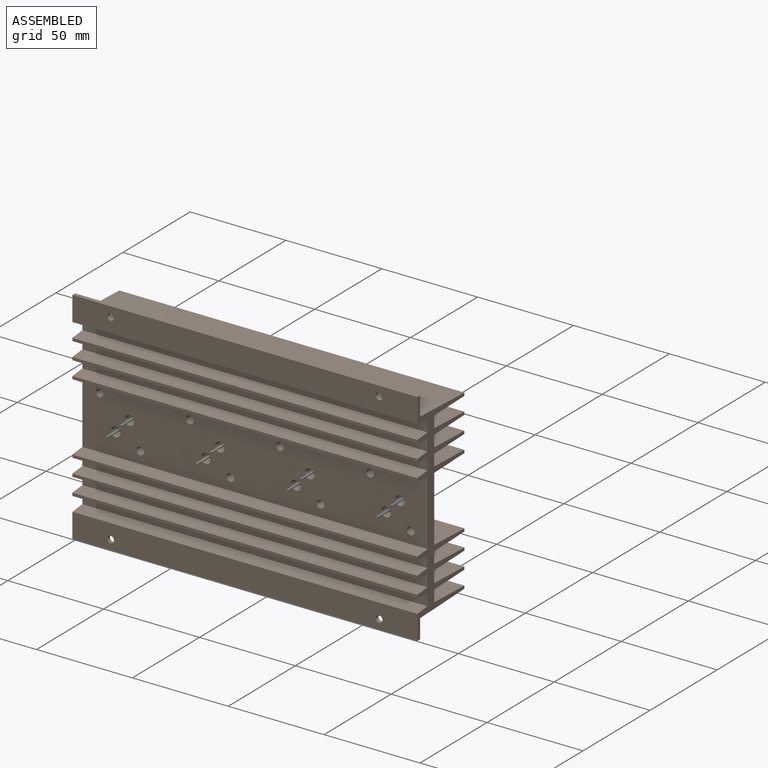
[diagram: assembled view]
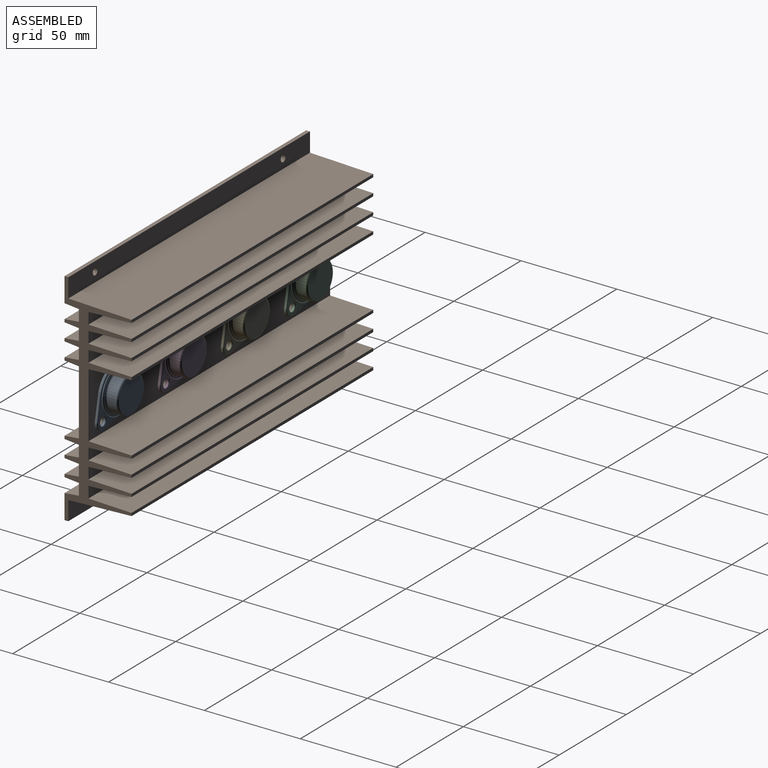
[diagram: assembled view, second angle]
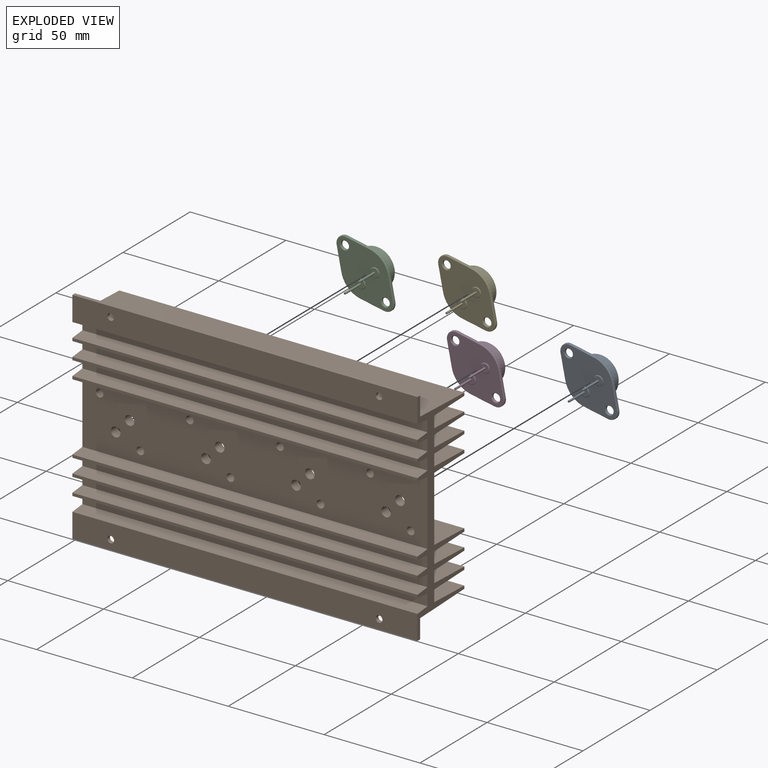
[diagram: exploded view]
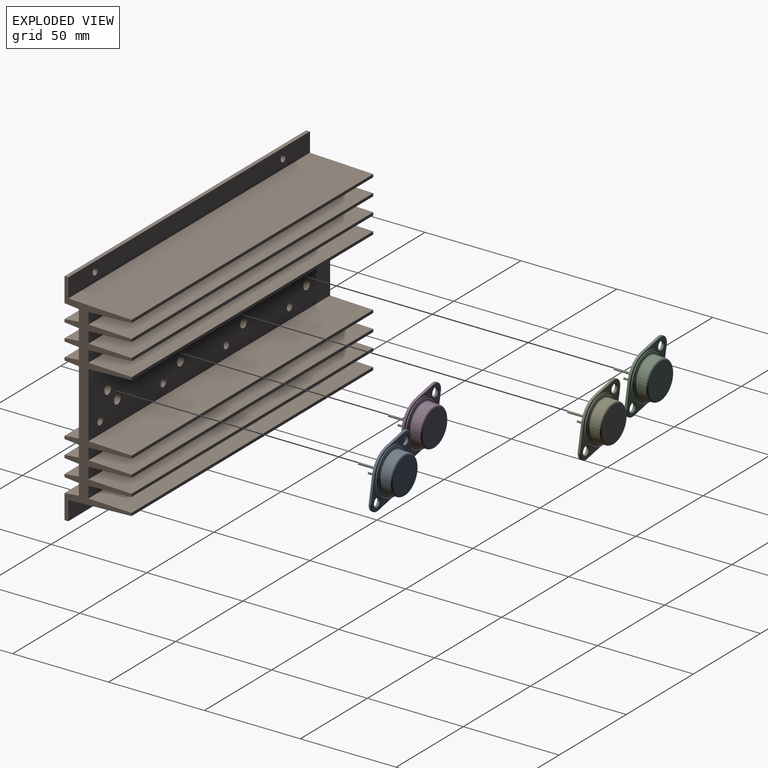
[diagram: exploded view, second angle]
ASSEMBLY  parts=5 mates=4
PART A: 59 faces, bbox 27.6x20.7x39.6 mm
  f0: torus R=2.49mm, axis (0,1,0), area 8.8mm2, adj f20,f25
  f1: torus R=2.49mm, axis (0,1,0), area 8.8mm2, adj f21,f25
  f2: torus R=2.49mm, axis (0,1,0), area 8.8mm2, adj f20,f24
  f3: torus R=2.49mm, axis (0,1,0), area 8.8mm2, adj f21,f24
  f4: torus R=4.05mm, axis (0,1,0), area 5.6mm2, adj f25,f27,f56,f58
  f5: torus R=4.05mm, axis (0,1,0), area 5.6mm2, adj f24,f27,f43,f49
  f6: torus R=11.37mm, axis (0,-1,0), area 47mm2, adj f7,f25
  f7: cone r=12.09mm half-angle=55.9deg, axis (0,1,0), area 8.2mm2, adj f6,f8
  f8: cylinder r=12.18mm len=24.36mm, axis (0,-1,0), area 33.6mm2, adj f7,f38
  f9: torus R=11.85mm, axis (0,-1,0), area 13.1mm2, adj f10,f38
  f10: cone r=11.72mm half-angle=53.2deg, axis (0,1,0), area 6mm2, adj f9,f11
  f11: torus R=11.49mm, axis (0,-1,0), area 24.1mm2, adj f10,f12
  f12: torus R=10.84mm, axis (0,-1,0), area 38.6mm2, adj f11,f37
  f13: torus R=10.53mm, axis (0,-1,0), area 65.6mm2, adj f14,f37
  f14: cylinder r=9.9mm len=19.81mm, axis (0,-1,0), area 299.2mm2, adj f13,f15
  f15: torus R=9.03mm, axis (0,-1,0), area 82.9mm2, adj f14,f23
  f16: torus R=2.11mm, axis (0,1,0), area 9.3mm2, adj f24,f33
  f17: torus R=2.13mm, axis (0,1,0), area 9.4mm2, adj f24,f35
  f18: cylinder r=0.5mm len=11.6mm, axis (0,1,0), area 36.7mm2, adj f35,f36
  f19: cylinder r=0.5mm len=11.6mm, axis (0,1,0), area 36.5mm2, adj f33,f34
  f20: cylinder r=2.09mm len=4.18mm, axis (0,-1,0), area 10.1mm2, adj f0,f2
  f21: cylinder r=2.09mm len=4.18mm, axis (0,-1,0), area 10.1mm2, adj f1,f3
  f22: cylinder r=4.38mm len=7.43mm, axis (0,-1,0), area 6.8mm2, adj f30,f31,f40,f45
  f23: plane 18.06x18.06mm, normal (0,1,0), area 256.1mm2, adj f15
  f24: plane 38.1x24.7mm, normal (0,-1,0), area 541.4mm2, adj f2,f3,f5,f16,f17,f39,f40,f41
  f25: plane 38.1x24.7mm, normal (0,1,0), area 165.6mm2, adj f0,f1,f4,f6,f45,f46,f50,f51
  f26: plane 9.83x6.53mm, normal (-0.83,0,0.55), area 9.1mm2, adj f27,f32,f43,f56
  f27: cylinder r=4.45mm len=7.64mm, axis (0,-1,0), area 7.1mm2, adj f4,f5,f26,f28
  f28: plane 9.82x6.52mm, normal (0.83,0,0.55), area 9.1mm2, adj f27,f49,f55,f58
  f29: cylinder r=12.75mm len=14.92mm, axis (0,-1,0), area 12.3mm2, adj f47,f48,f54,f55
  f30: plane 9.9x6.6mm, normal (0.83,0,-0.55), area 9.2mm2, adj f22,f42,f46,f47
  f31: plane 9.91x6.61mm, normal (-0.83,0,-0.55), area 9.2mm2, adj f22,f32,f39,f50
  f32: cylinder r=12.75mm len=14.93mm, axis (0,-1,0), area 12.3mm2, adj f26,f31,f41,f53
  f33: plane 4.21x4.21mm, normal (0,-1,0), area 13.1mm2, adj f16,f19
  f34: plane 1x1mm, normal (0,-1,0), area 0.8mm2, adj f19
  f35: plane 4.25x4.25mm, normal (0,-1,0), area 13.4mm2, adj f17,f18
  f36: plane 1.01x1.01mm, normal (0,-1,0), area 0.8mm2, adj f18
  f37: plane 21.69x21.69mm, normal (0,1,0), area 18.1mm2, adj f12,f13
  f38: plane 24.36x24.36mm, normal (0,1,0), area 22.5mm2, adj f8,f9
  f39: cylinder r=0.4mm len=10.14mm, axis (-0.55,0,0.83), area 7.5mm2, adj f24,f31,f40,f41
  f40: torus R=3.98mm, axis (0,1,0), area 5.4mm2, adj f22,f24,f39,f42
  f41: torus R=12.35mm, axis (0,1,0), area 9.9mm2, adj f24,f32,f39,f43
  f42: cylinder r=0.4mm len=10.13mm, axis (-0.55,0,-0.83), area 7.5mm2, adj f24,f30,f40,f44
  f43: cylinder r=0.4mm len=10.06mm, axis (0.55,0,0.83), area 7.4mm2, adj f5,f24,f26,f41
  f44: torus R=0.8mm, axis (0,1,0), area 0mm2, adj f24,f42,f47,f48
  f45: torus R=3.98mm, axis (0,1,0), area 5.4mm2, adj f22,f25,f46,f50
  f46: cylinder r=0.4mm len=10.13mm, axis (0.55,0,0.83), area 7.5mm2, adj f25,f30,f45,f51
  f47: cylinder r=0.4mm len=0.77mm, axis (0,-1,0), area 0mm2, adj f29,f30,f44,f51
  f48: torus R=12.35mm, axis (0,1,0), area 9.9mm2, adj f24,f29,f44,f52
  f49: cylinder r=0.4mm len=10.05mm, axis (0.55,0,-0.83), area 7.4mm2, adj f5,f24,f28,f52
  f50: cylinder r=0.4mm len=10.14mm, axis (0.55,0,-0.83), area 7.5mm2, adj f25,f31,f45,f53
  f51: torus R=0.8mm, axis (0,1,0), area 0mm2, adj f25,f46,f47,f54
  f52: torus R=0.8mm, axis (0,1,0), area 0mm2, adj f24,f48,f49,f55
  f53: torus R=12.35mm, axis (0,1,0), area 9.9mm2, adj f25,f32,f50,f56
  f54: torus R=12.35mm, axis (0,1,0), area 9.9mm2, adj f25,f29,f51,f57
  f55: cylinder r=0.4mm len=0.77mm, axis (0,-1,0), area 0mm2, adj f28,f29,f52,f57
  f56: cylinder r=0.4mm len=10.06mm, axis (-0.55,0,-0.83), area 7.4mm2, adj f4,f25,f26,f53
  f57: torus R=0.8mm, axis (0,1,0), area 0mm2, adj f25,f54,f55,f58
  f58: cylinder r=0.4mm len=10.05mm, axis (-0.55,0,0.83), area 7.4mm2, adj f4,f25,f28,f57
PART B: 86 faces, bbox 180x35x115 mm
  f0: plane 180x22.5mm, normal (0,0.03,-1), area 4052.2mm2, adj f1,f63,f64,f65
  f1: plane 180x1.5mm, normal (0,1,0), area 270mm2, adj f0,f2,f64,f65
  f2: plane 180x22.5mm, normal (0,0.03,1), area 4052.2mm2, adj f1,f3,f64,f65
  f3: plane 180x6mm, normal (0,1,0), area 1080mm2, adj f2,f4,f64,f65
  f4: plane 180x22.5mm, normal (0,0.03,-1), area 4052.2mm2, adj f3,f5,f64,f65
  f5: plane 180x1.5mm, normal (0,1,0), area 270mm2, adj f4,f6,f64,f65
  f6: plane 180x22.5mm, normal (0,0.03,1), area 4052.2mm2, adj f5,f7,f64,f65
  f7: plane 180x6mm, normal (0,1,0), area 1080mm2, adj f6,f8,f64,f65
  f8: plane 180x22.5mm, normal (0,0.03,-1), area 4052.2mm2, adj f7,f9,f64,f65
  f9: plane 180x1.5mm, normal (0,1,0), area 270mm2, adj f8,f10,f64,f65
  f10: plane 180x22.5mm, normal (0,0.03,1), area 4052.2mm2, adj f9,f11,f64,f65
  f11: plane 180x34mm, normal (0,1,0), area 5862.4mm2, adj f10,f12,f64,f65,f66,f67,f68,f69
  f12: plane 180x22.5mm, normal (0,0.03,-1), area 4052.2mm2, adj f11,f13,f64,f65
  f13: plane 180x1.5mm, normal (0,1,0), area 270mm2, adj f12,f14,f64,f65
  f14: plane 180x22.5mm, normal (0,0.03,1), area 4052.2mm2, adj f13,f15,f64,f65
  f15: plane 180x6mm, normal (0,1,0), area 1080mm2, adj f14,f16,f64,f65
  f16: plane 180x22.5mm, normal (0,0.03,-1), area 4052.2mm2, adj f15,f17,f64,f65
  f17: plane 180x1.5mm, normal (0,1,0), area 270mm2, adj f16,f18,f64,f65
  f18: plane 180x22.5mm, normal (0,0.03,1), area 4052.2mm2, adj f17,f19,f64,f65
  f19: plane 180x6mm, normal (0,1,0), area 1080mm2, adj f18,f20,f64,f65
  f20: plane 180x22.5mm, normal (0,0.03,-1), area 4052.2mm2, adj f19,f21,f64,f65
  f21: plane 180x1.5mm, normal (0,1,0), area 270mm2, adj f20,f22,f64,f65
  f22: plane 180x22.5mm, normal (0,0.03,1), area 4052.2mm2, adj f21,f23,f64,f65
  f23: plane 180x6mm, normal (0,1,0), area 1080mm2, adj f22,f24,f64,f65
  f24: plane 180x22.5mm, normal (0,0.03,-1), area 4052.2mm2, adj f23,f25,f64,f65
  f25: plane 180x1.5mm, normal (0,1,0), area 270mm2, adj f24,f26,f64,f65
  f26: plane 180x33mm, normal (0,0.04,1), area 5944.3mm2, adj f25,f27,f64,f65
  f27: plane 180x10mm, normal (0,1,0), area 1780.8mm2, adj f26,f28,f64,f65,f84,f85
  f28: plane 180x2mm, normal (0,0,1), area 360mm2, adj f27,f29,f64,f65
  f29: plane 180x12.75mm, normal (0,-1,0), area 2275.8mm2, adj f28,f30,f64,f65,f84,f85
  f30: plane 180x7.5mm, normal (0,-0.1,-1), area 1356.7mm2, adj f29,f31,f64,f65
  f31: plane 180x6mm, normal (0,-1,0), area 1080mm2, adj f30,f32,f64,f65
  f32: plane 180x7.5mm, normal (0,-0.1,1), area 1356.7mm2, adj f31,f33,f64,f65
  f33: plane 180x1.5mm, normal (0,-1,0), area 270mm2, adj f32,f34,f64,f65
  f34: plane 180x7.5mm, normal (0,-0.1,-1), area 1356.7mm2, adj f33,f35,f64,f65
  f35: plane 180x6mm, normal (0,-1,0), area 1080mm2, adj f34,f36,f64,f65
  f36: plane 180x7.5mm, normal (0,-0.1,1), area 1356.7mm2, adj f35,f37,f64,f65
  f37: plane 180x1.5mm, normal (0,-1,0), area 270mm2, adj f36,f38,f64,f65
  f38: plane 180x7.5mm, normal (0,-0.1,-1), area 1356.7mm2, adj f37,f39,f64,f65
  f39: plane 180x6mm, normal (0,-1,0), area 1080mm2, adj f38,f40,f64,f65
  f40: plane 180x7.5mm, normal (0,-0.1,1), area 1356.7mm2, adj f39,f41,f64,f65
  f41: plane 180x1.5mm, normal (0,-1,0), area 270mm2, adj f40,f42,f64,f65
  f42: plane 180x7.5mm, normal (0,-0.1,-1), area 1356.7mm2, adj f41,f43,f64,f65
  f43: plane 180x34mm, normal (0,-1,0), area 5862.4mm2, adj f42,f44,f64,f65,f66,f67,f68,f69
  f44: plane 180x7.5mm, normal (0,-0.1,1), area 1356.7mm2, adj f43,f45,f64,f65
  f45: plane 180x1.5mm, normal (0,-1,0), area 270mm2, adj f44,f46,f64,f65
  f46: plane 180x7.5mm, normal (0,-0.1,-1), area 1356.7mm2, adj f45,f47,f64,f65
  f47: plane 180x6mm, normal (0,-1,0), area 1080mm2, adj f46,f48,f64,f65
  f48: plane 180x7.5mm, normal (0,-0.1,1), area 1356.7mm2, adj f47,f49,f64,f65
  f49: plane 180x1.5mm, normal (0,-1,0), area 270mm2, adj f48,f50,f64,f65
  f50: plane 180x7.5mm, normal (0,-0.1,-1), area 1356.7mm2, adj f49,f51,f64,f65
  f51: plane 180x6mm, normal (0,-1,0), area 1080mm2, adj f50,f52,f64,f65
  f52: plane 180x7.5mm, normal (0,-0.1,1), area 1356.7mm2, adj f51,f53,f64,f65
  f53: plane 180x1.5mm, normal (0,-1,0), area 270mm2, adj f52,f54,f64,f65
  f54: plane 180x7.5mm, normal (0,-0.1,-1), area 1356.7mm2, adj f53,f55,f64,f65
  f55: plane 180x6mm, normal (0,-1,0), area 1080mm2, adj f54,f56,f64,f65
  f56: plane 180x7.5mm, normal (0,-0.1,1), area 1356.7mm2, adj f55,f57,f64,f65
  f57: plane 180x12.75mm, normal (0,-1,0), area 2275.8mm2, adj f56,f58,f64,f65,f82,f83
  f58: plane 180x2mm, normal (0,0,-1), area 360mm2, adj f57,f59,f64,f65
  f59: plane 180x10mm, normal (0,1,0), area 1780.8mm2, adj f58,f60,f64,f65,f82,f83
  f60: plane 180x33mm, normal (0,0.04,-1), area 5944.3mm2, adj f59,f61,f64,f65
  f61: plane 180x1.5mm, normal (0,1,0), area 270mm2, adj f60,f62,f64,f65
  f62: plane 180x22.5mm, normal (0,0.03,1), area 4052.2mm2, adj f61,f63,f64,f65
  f63: plane 180x6mm, normal (0,1,0), area 1080mm2, adj f0,f62,f64,f65
  f64: plane 115x35mm, normal (1,0,0), area 1066.2mm2, adj f0,f1,f2,f3,f4,f5,f6,f7
  f65: plane 115x35mm, normal (-1,0,0), area 1066.2mm2, adj f0,f1,f2,f3,f4,f5,f6,f7
  f66: cylinder r=2mm len=5mm, axis (0,1,0), area 62.8mm2, adj f11,f43
  f67: cylinder r=2mm len=5mm, axis (0,1,0), area 62.8mm2, adj f11,f43
  f68: cylinder r=2mm len=5mm, axis (0,1,0), area 62.8mm2, adj f11,f43
  f69: cylinder r=2mm len=5mm, axis (0,1,0), area 62.8mm2, adj f11,f43
  f70: cylinder r=2mm len=5mm, axis (0,1,0), area 62.8mm2, adj f11,f43
  f71: cylinder r=2mm len=5mm, axis (0,1,0), area 62.8mm2, adj f11,f43
  f72: cylinder r=2mm len=5mm, axis (0,1,0), area 62.8mm2, adj f11,f43
  f73: cylinder r=2mm len=5mm, axis (0,1,0), area 62.8mm2, adj f11,f43
  f74: cylinder r=2.5mm len=5mm, axis (0,-1,0), area 78.5mm2, adj f11,f43
  f75: cylinder r=2.5mm len=5mm, axis (0,-1,0), area 78.5mm2, adj f11,f43
  f76: cylinder r=2.5mm len=5mm, axis (0,-1,0), area 78.5mm2, adj f11,f43
  f77: cylinder r=2.5mm len=5mm, axis (0,-1,0), area 78.5mm2, adj f11,f43
  f78: cylinder r=2.5mm len=5mm, axis (0,-1,0), area 78.5mm2, adj f11,f43
  f79: cylinder r=2.5mm len=5mm, axis (0,-1,0), area 78.5mm2, adj f11,f43
  f80: cylinder r=2.5mm len=5mm, axis (0,-1,0), area 78.5mm2, adj f11,f43
  f81: cylinder r=2.5mm len=5mm, axis (0,-1,0), area 78.5mm2, adj f11,f43
  f82: cylinder r=1.75mm len=3.5mm, axis (0,1,0), area 22mm2, adj f57,f59
  f83: cylinder r=1.75mm len=3.5mm, axis (0,1,0), area 22mm2, adj f57,f59
  f84: cylinder r=1.75mm len=3.5mm, axis (0,1,0), area 22mm2, adj f27,f29
  f85: cylinder r=1.75mm len=3.5mm, axis (0,1,0), area 22mm2, adj f27,f29
PART C: same geometry as A
PART D: same geometry as A
PART E: same geometry as A
PLACE A rot(axis=(0,-1,0),45deg) t=(113,-42.82,-11.01)mm
PLACE B rot(axis=(0.2,0.97,-0.1),0deg) t=(-47.61,-55.32,-11.1)mm
PLACE C rot(axis=(0,-1,0),45deg) t=(-28,-42.82,-11.01)mm
PLACE D rot(axis=(0,-1,0),45deg) t=(66,-42.82,-11.01)mm
PLACE E rot(axis=(0,-1,0),45deg) t=(19,-42.82,-11.01)mm
MATE cylindrical C.f1 <-> B.f73  axis (0,-1,0) through (-38.61,-42.82,-0.4)mm
MATE cylindrical A.f1 <-> B.f68  axis (0,-1,0) through (102.39,-42.82,-0.4)mm
MATE cylindrical D.f1 <-> B.f67  axis (0,-1,0) through (55.39,-42.82,-0.4)mm
MATE cylindrical E.f1 <-> B.f66  axis (0,-1,0) through (8.39,-42.82,-0.4)mm
